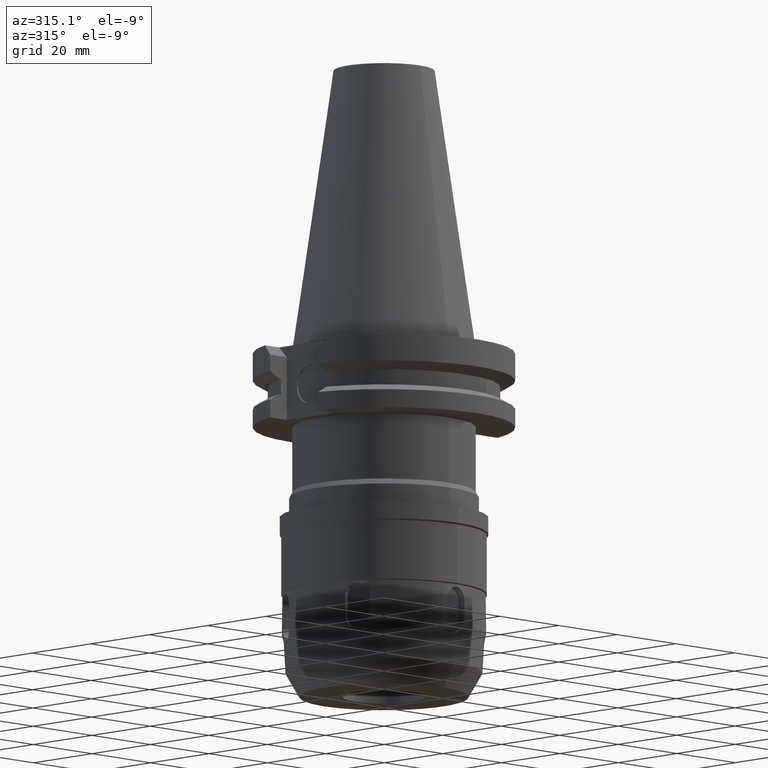
[diagram: clean part render]
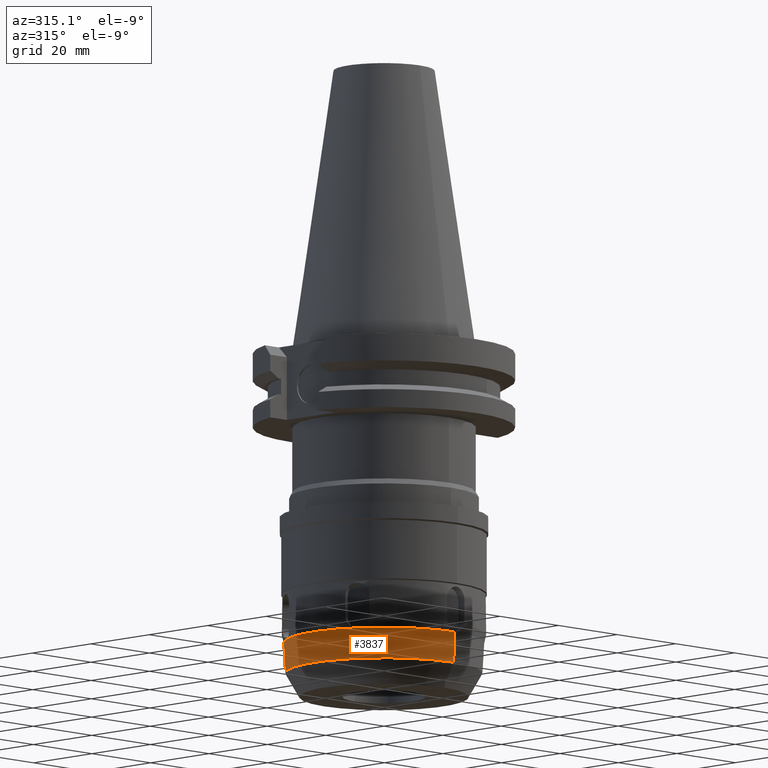
[diagram: same view with one face highlighted and labeled with its STEP entity id]
A machine part, auxiliary view. The second image highlights one B-rep face of the part: STEP entity #3837.
In plain terms, the highlighted conical surface has half-angle 3 deg.
Its self-contained STEP definition (entity closure, byte-faithful):
#1286=CARTESIAN_POINT('',(0.E0,0.E0,-7.176705353144E1));
#1287=DIRECTION('',(0.E0,0.E0,-1.E0));
#1288=DIRECTION('',(-8.567384949564E-1,5.157510555102E-1,0.E0));
#1289=AXIS2_PLACEMENT_3D('',#1286,#1287,#1288);
#1313=CARTESIAN_POINT('',(-2.077567292426E1,1.250682024926E1,
-7.176705357272E1));
#1314=CARTESIAN_POINT('',(-2.080057047727E1,1.246471904926E1,
-7.177436246031E1));
#1315=CARTESIAN_POINT('',(-2.085040319293E1,1.238012573047E1,
-7.178656058046E1));
#1316=CARTESIAN_POINT('',(-2.092507019525E1,1.225236243490E1,
-7.179755534759E1));
#1317=CARTESIAN_POINT('',(-2.097466219927E1,1.216681412811E1,
-7.179999992088E1));
#1318=CARTESIAN_POINT('',(-2.099938170849E1,1.212399868221E1,
-7.179999992088E1));
#1323=CARTESIAN_POINT('',(-2.099938170849E1,1.212399868221E1,
-7.179999992088E1));
#1324=CARTESIAN_POINT('',(-2.102410121772E1,1.208118323628E1,
-7.179999992088E1));
#1325=CARTESIAN_POINT('',(-2.107339221761E1,1.199546115889E1,
-7.179755535042E1));
#1326=CARTESIAN_POINT('',(-2.114670499911E1,1.186691593937E1,
-7.178656057056E1));
#1327=CARTESIAN_POINT('',(-2.119504854817E1,1.178146300682E1,
-7.177436248149E1));
#1328=CARTESIAN_POINT('',(-2.121906060593E1,1.173885027167E1,
-7.176705354719E1));
#1333=CARTESIAN_POINT('',(-2.121906051858E1,-1.173885040845E1,
-7.176705357271E1));
#1334=CARTESIAN_POINT('',(-2.119504858633E1,-1.178146292191E1,
-7.177436246031E1));
#1335=CARTESIAN_POINT('',(-2.114670498111E1,-1.186691597896E1,
-7.178656058045E1));
#1336=CARTESIAN_POINT('',(-2.107339222263E1,-1.199546114759E1,
-7.179755534759E1));
#1337=CARTESIAN_POINT('',(-2.102410121771E1,-1.208118323630E1,
-7.179999992088E1));
#1338=CARTESIAN_POINT('',(-2.099938170849E1,-1.212399868221E1,
-7.179999992088E1));
#1343=CARTESIAN_POINT('',(-2.099938170849E1,-1.212399868221E1,
-7.179999992088E1));
#1344=CARTESIAN_POINT('',(-2.097466219926E1,-1.216681412813E1,
-7.179999992088E1));
#1345=CARTESIAN_POINT('',(-2.092507020252E1,-1.225236242491E1,
-7.179755535042E1));
#1346=CARTESIAN_POINT('',(-2.085040316763E1,-1.238012576587E1,
-7.178656057056E1));
#1347=CARTESIAN_POINT('',(-2.080057053174E1,-1.246471897374E1,
-7.177436248150E1));
#1348=CARTESIAN_POINT('',(-2.077567284945E1,-1.250682039334E1,
-7.176705354719E1));
#1353=CARTESIAN_POINT('',(-4.433824299135E-1,-2.424567038034E1,
-7.176705449971E1));
#1354=CARTESIAN_POINT('',(-3.944822263078E-1,-2.424618161943E1,
-7.177436168672E1));
#1355=CARTESIAN_POINT('',(-2.962999426996E-1,-2.424704194546E1,
-7.178656094316E1));
#1356=CARTESIAN_POINT('',(-1.483226176408E-1,-2.424782321369E1,
-7.179755520806E1));
#1357=CARTESIAN_POINT('',(-4.943903759235E-2,-2.424799802806E1,
-7.179999999643E1));
#1358=CARTESIAN_POINT('',(2.673571569928E-14,-2.424799802806E1,
-7.179999999643E1));
#1363=DIRECTION('',(0.E0,5.233597852943E-2,-9.986295335866E-1));
#1364=VECTOR('',#1363,7.388125180987E0);
#1365=CARTESIAN_POINT('',(2.673571569928E-14,-2.424799802806E1,
-7.179999999643E1));
#1366=LINE('',#1365,#1364);
#1370=CARTESIAN_POINT('',(0.E0,0.E0,-7.9178E1));
#1371=DIRECTION('',(0.E0,0.E0,-1.E0));
#1372=DIRECTION('',(0.E0,-1.E0,0.E0));
#1373=AXIS2_PLACEMENT_3D('',#1370,#1371,#1372);
#1378=CARTESIAN_POINT('',(0.E0,2.424799802806E1,-7.179999999643E1));
#1379=CARTESIAN_POINT('',(-4.943904012220E-2,2.424799802806E1,
-7.179999999643E1));
#1380=CARTESIAN_POINT('',(-1.483220929884E-1,2.424782325779E1,
-7.179755531375E1));
#1381=CARTESIAN_POINT('',(-2.963017936223E-1,2.424704177342E1,
-7.178656057235E1));
#1382=CARTESIAN_POINT('',(-3.944782458142E-1,2.424618197970E1,
-7.177436248262E1));
#1383=CARTESIAN_POINT('',(-4.433880190626E-1,2.424567066254E1,
-7.176705354139E1));
#1418=CARTESIAN_POINT('',(0.E0,0.E0,-7.176705353144E1));
#1419=DIRECTION('',(0.E0,0.E0,-1.E0));
#1420=DIRECTION('',(-8.750227635786E-1,-4.840817732772E-1,0.E0));
#1421=AXIS2_PLACEMENT_3D('',#1418,#1419,#1420);
#1470=CARTESIAN_POINT('',(0.E0,0.E0,-7.176705353144E1));
#1471=DIRECTION('',(0.E0,0.E0,-1.E0));
#1472=DIRECTION('',(-1.828426862219E-2,-9.998328287874E-1,0.E0));
#1473=AXIS2_PLACEMENT_3D('',#1470,#1471,#1472);
#1576=DIRECTION('',(0.E0,-5.233597852943E-2,-9.986295335866E-1));
#1577=VECTOR('',#1576,7.388125180987E0);
#1578=CARTESIAN_POINT('',(0.E0,2.424799802806E1,-7.179999999643E1));
#1579=LINE('',#1578,#1577);
#2562=CARTESIAN_POINT('',(0.E0,2.386133326722E1,-7.9178E1));
#2563=VERTEX_POINT('',#2562);
#2564=CARTESIAN_POINT('',(1.827095073231E-14,-2.386133326722E1,-7.9178E1));
#2565=VERTEX_POINT('',#2564);
#2566=VERTEX_POINT('',#1323);
#2567=VERTEX_POINT('',#1328);
#2568=VERTEX_POINT('',#1313);
#2569=CARTESIAN_POINT('',(-2.121906096028E1,-1.173884964423E1,
-7.176705353144E1));
#2570=VERTEX_POINT('',#2569);
#2571=VERTEX_POINT('',#1343);
#2572=VERTEX_POINT('',#1348);
#2573=CARTESIAN_POINT('',(-4.433884770285E-1,-2.424567065817E1,
-7.176705353144E1));
#2574=VERTEX_POINT('',#2573);
#2575=VERTEX_POINT('',#1358);
#2576=CARTESIAN_POINT('',(0.E0,2.424799802806E1,-7.179999999643E1));
#2577=VERTEX_POINT('',#2576);
#2578=VERTEX_POINT('',#1383);
#3809=CARTESIAN_POINT('',(0.E0,0.E0,-7.547252676572E1));
#3810=DIRECTION('',(0.E0,0.E0,1.E0));
#3811=DIRECTION('',(0.E0,1.E0,0.E0));
#3812=AXIS2_PLACEMENT_3D('',#3809,#3810,#3811);
#3813=CONICAL_SURFACE('',#3812,2.405552889062E1,3.000000000001E0);
#3814=ORIENTED_EDGE('',*,*,#3790,.T.);
#3815=ORIENTED_EDGE('',*,*,#3788,.T.);
#3817=ORIENTED_EDGE('',*,*,#3816,.F.);
#3819=ORIENTED_EDGE('',*,*,#3818,.T.);
#3821=ORIENTED_EDGE('',*,*,#3820,.T.);
#3823=ORIENTED_EDGE('',*,*,#3822,.F.);
#3825=ORIENTED_EDGE('',*,*,#3824,.T.);
#3827=ORIENTED_EDGE('',*,*,#3826,.T.);
#3829=ORIENTED_EDGE('',*,*,#3828,.T.);
#3831=ORIENTED_EDGE('',*,*,#3830,.F.);
#3833=ORIENTED_EDGE('',*,*,#3832,.T.);
#3834=ORIENTED_EDGE('',*,*,#3801,.F.);
#3835=EDGE_LOOP('',(#3814,#3815,#3817,#3819,#3821,#3823,#3825,#3827,#3829,#3831,
#3833,#3834));
#3836=FACE_OUTER_BOUND('',#3835,.F.);
#1290=CIRCLE('',#1289,2.424972451402E1);
#1319=B_SPLINE_CURVE_WITH_KNOTS('',3,(#1313,#1314,#1315,#1316,#1317,#1318),
.UNSPECIFIED.,.F.,.F.,(4,1,1,4),(0.E0,3.333333333333E-1,6.666666666667E-1,1.E0),
.UNSPECIFIED.);
#1329=B_SPLINE_CURVE_WITH_KNOTS('',3,(#1323,#1324,#1325,#1326,#1327,#1328),
.UNSPECIFIED.,.F.,.F.,(4,1,1,4),(0.E0,3.333333333333E-1,6.666666666667E-1,1.E0),
.UNSPECIFIED.);
#1339=B_SPLINE_CURVE_WITH_KNOTS('',3,(#1333,#1334,#1335,#1336,#1337,#1338),
.UNSPECIFIED.,.F.,.F.,(4,1,1,4),(0.E0,3.333333333333E-1,6.666666666667E-1,1.E0),
.UNSPECIFIED.);
#1349=B_SPLINE_CURVE_WITH_KNOTS('',3,(#1343,#1344,#1345,#1346,#1347,#1348),
.UNSPECIFIED.,.F.,.F.,(4,1,1,4),(0.E0,3.333333333333E-1,6.666666666667E-1,1.E0),
.UNSPECIFIED.);
#1359=B_SPLINE_CURVE_WITH_KNOTS('',3,(#1353,#1354,#1355,#1356,#1357,#1358),
.UNSPECIFIED.,.F.,.F.,(4,1,1,4),(0.E0,3.333333333333E-1,6.666666666667E-1,1.E0),
.UNSPECIFIED.);
#1374=CIRCLE('',#1373,2.386133326722E1);
#1384=B_SPLINE_CURVE_WITH_KNOTS('',3,(#1378,#1379,#1380,#1381,#1382,#1383),
.UNSPECIFIED.,.F.,.F.,(4,1,1,4),(0.E0,3.333333333333E-1,6.666666666667E-1,1.E0),
.UNSPECIFIED.);
#1422=CIRCLE('',#1421,2.424972451402E1);
#1474=CIRCLE('',#1473,2.424972451402E1);
#3788=EDGE_CURVE('',#2566,#2567,#1329,.T.);
#3790=EDGE_CURVE('',#2568,#2566,#1319,.T.);
#3801=EDGE_CURVE('',#2568,#2578,#1290,.T.);
#3816=EDGE_CURVE('',#2570,#2567,#1422,.T.);
#3818=EDGE_CURVE('',#2570,#2571,#1339,.T.);
#3820=EDGE_CURVE('',#2571,#2572,#1349,.T.);
#3822=EDGE_CURVE('',#2574,#2572,#1474,.T.);
#3824=EDGE_CURVE('',#2574,#2575,#1359,.T.);
#3826=EDGE_CURVE('',#2575,#2565,#1366,.T.);
#3828=EDGE_CURVE('',#2565,#2563,#1374,.T.);
#3830=EDGE_CURVE('',#2577,#2563,#1579,.T.);
#3832=EDGE_CURVE('',#2577,#2578,#1384,.T.);
#3837=ADVANCED_FACE('',(#3836),#3813,.T.);